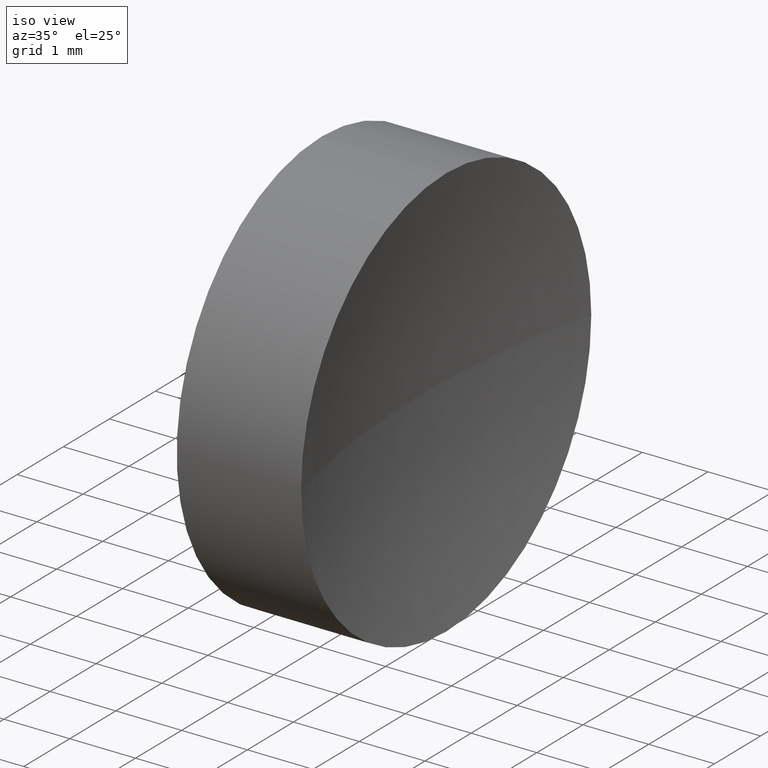
[diagram: clean part render]
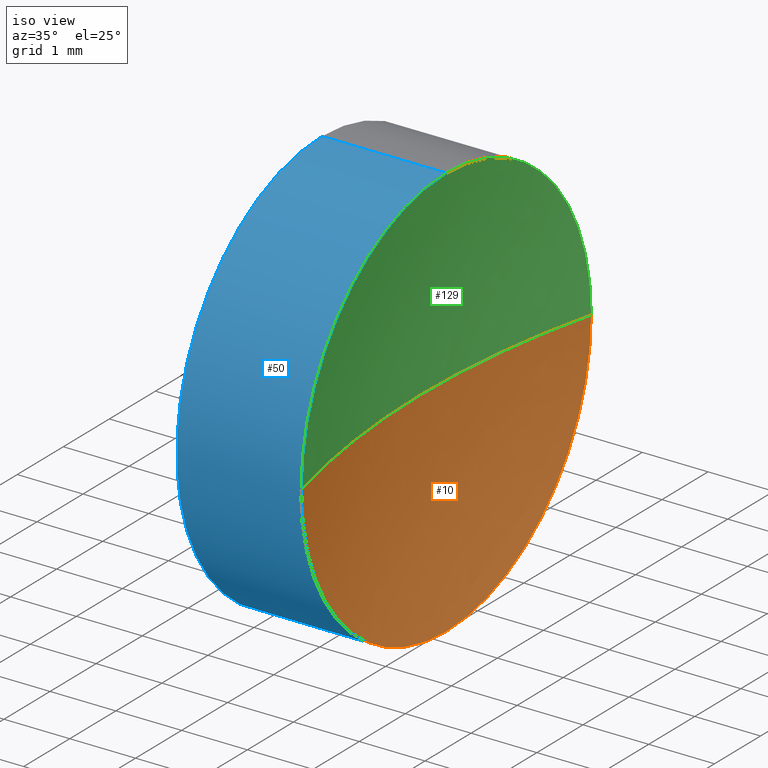
[diagram: same view with three faces highlighted in distinct colors, each labeled with its STEP entity id]
A machine part, iso view with three faces highlighted in distinct colors.
Their STEP definitions:

[orange] entity #10 — the highlighted spherical surface has radius 12.91 mm.
#9 = SPHERICAL_SURFACE ( 'NONE', #43, 12.90999999999999800 ) ;
#10 = ADVANCED_FACE ( 'NONE', ( #91 ), #9, .F. ) ;
#11 = VERTEX_POINT ( 'NONE', #151 ) ;
#16 = DIRECTION ( 'NONE',  ( 0.0000000000000000000, 0.0000000000000000000, 1.000000000000000000 ) ) ;
#17 = CARTESIAN_POINT ( 'NONE',  ( 24.19946052733276100, 16.18112609140304100, 3.857637417314165200E-016 ) ) ;
#25 = EDGE_CURVE ( 'NONE', #62, #32, #172, .T. ) ;
#28 = ORIENTED_EDGE ( 'NONE', *, *, #53, .F. ) ;
#30 = CARTESIAN_POINT ( 'NONE',  ( 23.80926883257449600, 13.03112609140304200, 0.0000000000000000000 ) ) ;
#32 = VERTEX_POINT ( 'NONE', #30 ) ;
#39 = EDGE_CURVE ( 'NONE', #62, #11, #127, .T. ) ;
#43 = AXIS2_PLACEMENT_3D ( 'NONE', #54, #115, #55 ) ;
#45 = ORIENTED_EDGE ( 'NONE', *, *, #39, .F. ) ;
#46 = AXIS2_PLACEMENT_3D ( 'NONE', #134, #107, #16 ) ;
#53 = EDGE_CURVE ( 'NONE', #170, #32, #90, .T. ) ;
#54 = CARTESIAN_POINT ( 'NONE',  ( 36.71926883257449200, 13.03112609140304200, 0.0000000000000000000 ) ) ;
#55 = DIRECTION ( 'NONE',  ( 0.0000000000000000000, -1.000000000000000000, 0.0000000000000000000 ) ) ;
#57 = DIRECTION ( 'NONE',  ( 0.0000000000000000000, 0.0000000000000000000, -1.000000000000000000 ) ) ;
#62 = VERTEX_POINT ( 'NONE', #17 ) ;
#87 = DIRECTION ( 'NONE',  ( 0.0000000000000000000, 0.0000000000000000000, 1.000000000000000000 ) ) ;
#90 = CIRCLE ( 'NONE', #120, 12.90999999999999800 ) ;
#91 = FACE_OUTER_BOUND ( 'NONE', #108, .T. ) ;
#107 = DIRECTION ( 'NONE',  ( -1.000000000000000000, -0.0000000000000000000, -0.0000000000000000000 ) ) ;
#108 = EDGE_LOOP ( 'NONE', ( #45, #149, #28, #144 ) ) ;
#113 = CIRCLE ( 'NONE', #146, 3.150000000000001700 ) ;
#115 = DIRECTION ( 'NONE',  ( 0.0000000000000000000, 0.0000000000000000000, 1.000000000000000000 ) ) ;
#117 = DIRECTION ( 'NONE',  ( -1.000000000000000000, 0.0000000000000000000, 0.0000000000000000000 ) ) ;
#119 = DIRECTION ( 'NONE',  ( -1.000000000000000000, -0.0000000000000000000, -0.0000000000000000000 ) ) ;
#120 = AXIS2_PLACEMENT_3D ( 'NONE', #139, #57, #117 ) ;
#126 = EDGE_CURVE ( 'NONE', #11, #170, #113, .T. ) ;
#127 = CIRCLE ( 'NONE', #46, 3.150000000000001700 ) ;
#133 = CARTESIAN_POINT ( 'NONE',  ( 36.71926883257449200, 13.03112609140304200, 0.0000000000000000000 ) ) ;
#134 = CARTESIAN_POINT ( 'NONE',  ( 24.19946052733276100, 13.03112609140304000, 0.0000000000000000000 ) ) ;
#135 = DIRECTION ( 'NONE',  ( 0.0000000000000000000, -1.000000000000000000, -1.224646799147353200E-016 ) ) ;
#137 = CARTESIAN_POINT ( 'NONE',  ( 24.19946052733276100, 13.03112609140304000, 0.0000000000000000000 ) ) ;
#139 = CARTESIAN_POINT ( 'NONE',  ( 36.71926883257449200, 13.03112609140304200, 0.0000000000000000000 ) ) ;
#144 = ORIENTED_EDGE ( 'NONE', *, *, #126, .F. ) ;
#146 = AXIS2_PLACEMENT_3D ( 'NONE', #137, #119, #87 ) ;
#149 = ORIENTED_EDGE ( 'NONE', *, *, #25, .T. ) ;
#151 = CARTESIAN_POINT ( 'NONE',  ( 24.19946052733276100, 13.03112609140304000, -3.150000000000001200 ) ) ;
#154 = DIRECTION ( 'NONE',  ( 0.0000000000000000000, -1.224646799147353200E-016, 1.000000000000000000 ) ) ;
#165 = AXIS2_PLACEMENT_3D ( 'NONE', #133, #154, #135 ) ;
#170 = VERTEX_POINT ( 'NONE', #174 ) ;
#172 = CIRCLE ( 'NONE', #165, 12.90999999999999800 ) ;
#174 = CARTESIAN_POINT ( 'NONE',  ( 24.19946052733276100, 9.881126091403038100, 0.0000000000000000000 ) ) ;

[blue] entity #50 — the highlighted cylindrical surface (partial cylindrical patch) has radius 3.15 mm, axis along (-1, -0, -0).
#3 = VERTEX_POINT ( 'NONE', #86 ) ;
#11 = VERTEX_POINT ( 'NONE', #151 ) ;
#20 = DIRECTION ( 'NONE',  ( 0.0000000000000000000, 0.0000000000000000000, 1.000000000000000000 ) ) ;
#23 = VERTEX_POINT ( 'NONE', #84 ) ;
#29 = EDGE_CURVE ( 'NONE', #170, #69, #140, .T. ) ;
#33 = DIRECTION ( 'NONE',  ( -1.000000000000000000, -0.0000000000000000000, -0.0000000000000000000 ) ) ;
#42 = CARTESIAN_POINT ( 'NONE',  ( 20.68403063513288800, 13.03112609140304000, 0.0000000000000000000 ) ) ;
#44 = DIRECTION ( 'NONE',  ( -1.000000000000000000, -0.0000000000000000000, -0.0000000000000000000 ) ) ;
#48 = DIRECTION ( 'NONE',  ( -1.000000000000000000, -0.0000000000000000000, -0.0000000000000000000 ) ) ;
#50 = ADVANCED_FACE ( 'NONE', ( #92 ), #83, .T. ) ;
#58 = DIRECTION ( 'NONE',  ( -1.000000000000000000, -0.0000000000000000000, -0.0000000000000000000 ) ) ;
#65 = ORIENTED_EDGE ( 'NONE', *, *, #126, .T. ) ;
#66 = AXIS2_PLACEMENT_3D ( 'NONE', #42, #44, #95 ) ;
#68 = CIRCLE ( 'NONE', #142, 3.149999999999998100 ) ;
#69 = VERTEX_POINT ( 'NONE', #98 ) ;
#70 = CARTESIAN_POINT ( 'NONE',  ( 24.19946052733276100, 13.03112609140304000, 0.0000000000000000000 ) ) ;
#75 = LINE ( 'NONE', #155, #182 ) ;
#83 = CYLINDRICAL_SURFACE ( 'NONE', #66, 3.149999999999999900 ) ;
#84 = CARTESIAN_POINT ( 'NONE',  ( 22.30926883257449200, 13.03112609140304000, -3.149999999999998100 ) ) ;
#86 = CARTESIAN_POINT ( 'NONE',  ( 22.30926883257449200, 13.03112609140304000, 3.149999999999998100 ) ) ;
#87 = DIRECTION ( 'NONE',  ( 0.0000000000000000000, 0.0000000000000000000, 1.000000000000000000 ) ) ;
#88 = VECTOR ( 'NONE', #48, 1000.000000000000000 ) ;
#92 = FACE_OUTER_BOUND ( 'NONE', #161, .T. ) ;
#94 = EDGE_CURVE ( 'NONE', #23, #3, #68, .T. ) ;
#95 = DIRECTION ( 'NONE',  ( 0.0000000000000000000, 0.0000000000000000000, 1.000000000000000000 ) ) ;
#96 = DIRECTION ( 'NONE',  ( 0.0000000000000000000, 0.0000000000000000000, 1.000000000000000000 ) ) ;
#98 = CARTESIAN_POINT ( 'NONE',  ( 24.19946052733276100, 13.03112609140304000, 3.150000000000001200 ) ) ;
#104 = ORIENTED_EDGE ( 'NONE', *, *, #123, .F. ) ;
#113 = CIRCLE ( 'NONE', #146, 3.150000000000001700 ) ;
#114 = LINE ( 'NONE', #160, #88 ) ;
#116 = DIRECTION ( 'NONE',  ( -1.000000000000000000, -0.0000000000000000000, -0.0000000000000000000 ) ) ;
#119 = DIRECTION ( 'NONE',  ( -1.000000000000000000, -0.0000000000000000000, -0.0000000000000000000 ) ) ;
#123 = EDGE_CURVE ( 'NONE', #11, #23, #75, .T. ) ;
#126 = EDGE_CURVE ( 'NONE', #11, #170, #113, .T. ) ;
#130 = ORIENTED_EDGE ( 'NONE', *, *, #94, .F. ) ;
#137 = CARTESIAN_POINT ( 'NONE',  ( 24.19946052733276100, 13.03112609140304000, 0.0000000000000000000 ) ) ;
#140 = CIRCLE ( 'NONE', #173, 3.150000000000001700 ) ;
#142 = AXIS2_PLACEMENT_3D ( 'NONE', #157, #33, #20 ) ;
#146 = AXIS2_PLACEMENT_3D ( 'NONE', #137, #119, #87 ) ;
#147 = ORIENTED_EDGE ( 'NONE', *, *, #29, .T. ) ;
#151 = CARTESIAN_POINT ( 'NONE',  ( 24.19946052733276100, 13.03112609140304000, -3.150000000000001200 ) ) ;
#155 = CARTESIAN_POINT ( 'NONE',  ( 20.68403063513288800, 13.03112609140304000, -3.149999999999999900 ) ) ;
#157 = CARTESIAN_POINT ( 'NONE',  ( 22.30926883257449200, 13.03112609140304000, 0.0000000000000000000 ) ) ;
#160 = CARTESIAN_POINT ( 'NONE',  ( 20.68403063513288800, 13.03112609140304000, 3.149999999999999900 ) ) ;
#161 = EDGE_LOOP ( 'NONE', ( #104, #65, #147, #185, #130 ) ) ;
#170 = VERTEX_POINT ( 'NONE', #174 ) ;
#173 = AXIS2_PLACEMENT_3D ( 'NONE', #70, #116, #96 ) ;
#174 = CARTESIAN_POINT ( 'NONE',  ( 24.19946052733276100, 9.881126091403038100, 0.0000000000000000000 ) ) ;
#182 = VECTOR ( 'NONE', #58, 1000.000000000000000 ) ;
#183 = EDGE_CURVE ( 'NONE', #69, #3, #114, .T. ) ;
#185 = ORIENTED_EDGE ( 'NONE', *, *, #183, .T. ) ;

[green] entity #129 — the highlighted spherical surface has radius 12.91 mm.
#4 = CARTESIAN_POINT ( 'NONE',  ( 36.71926883257449200, 13.03112609140304200, 0.0000000000000000000 ) ) ;
#17 = CARTESIAN_POINT ( 'NONE',  ( 24.19946052733276100, 16.18112609140304100, 3.857637417314165200E-016 ) ) ;
#25 = EDGE_CURVE ( 'NONE', #62, #32, #172, .T. ) ;
#29 = EDGE_CURVE ( 'NONE', #170, #69, #140, .T. ) ;
#30 = CARTESIAN_POINT ( 'NONE',  ( 23.80926883257449600, 13.03112609140304200, 0.0000000000000000000 ) ) ;
#32 = VERTEX_POINT ( 'NONE', #30 ) ;
#38 = ORIENTED_EDGE ( 'NONE', *, *, #136, .F. ) ;
#40 = ORIENTED_EDGE ( 'NONE', *, *, #53, .T. ) ;
#53 = EDGE_CURVE ( 'NONE', #170, #32, #90, .T. ) ;
#56 = FACE_OUTER_BOUND ( 'NONE', #102, .T. ) ;
#57 = DIRECTION ( 'NONE',  ( 0.0000000000000000000, 0.0000000000000000000, -1.000000000000000000 ) ) ;
#60 = DIRECTION ( 'NONE',  ( 0.0000000000000000000, 0.0000000000000000000, 1.000000000000000000 ) ) ;
#61 = DIRECTION ( 'NONE',  ( 0.0000000000000000000, 0.0000000000000000000, 1.000000000000000000 ) ) ;
#62 = VERTEX_POINT ( 'NONE', #17 ) ;
#69 = VERTEX_POINT ( 'NONE', #98 ) ;
#70 = CARTESIAN_POINT ( 'NONE',  ( 24.19946052733276100, 13.03112609140304000, 0.0000000000000000000 ) ) ;
#73 = DIRECTION ( 'NONE',  ( 0.0000000000000000000, -1.000000000000000000, 0.0000000000000000000 ) ) ;
#85 = SPHERICAL_SURFACE ( 'NONE', #148, 12.90999999999999800 ) ;
#89 = DIRECTION ( 'NONE',  ( -1.000000000000000000, -0.0000000000000000000, -0.0000000000000000000 ) ) ;
#90 = CIRCLE ( 'NONE', #120, 12.90999999999999800 ) ;
#96 = DIRECTION ( 'NONE',  ( 0.0000000000000000000, 0.0000000000000000000, 1.000000000000000000 ) ) ;
#98 = CARTESIAN_POINT ( 'NONE',  ( 24.19946052733276100, 13.03112609140304000, 3.150000000000001200 ) ) ;
#102 = EDGE_LOOP ( 'NONE', ( #103, #38, #112, #40 ) ) ;
#103 = ORIENTED_EDGE ( 'NONE', *, *, #25, .F. ) ;
#112 = ORIENTED_EDGE ( 'NONE', *, *, #29, .F. ) ;
#116 = DIRECTION ( 'NONE',  ( -1.000000000000000000, -0.0000000000000000000, -0.0000000000000000000 ) ) ;
#117 = DIRECTION ( 'NONE',  ( -1.000000000000000000, 0.0000000000000000000, 0.0000000000000000000 ) ) ;
#118 = CIRCLE ( 'NONE', #132, 3.150000000000001700 ) ;
#120 = AXIS2_PLACEMENT_3D ( 'NONE', #139, #57, #117 ) ;
#121 = CARTESIAN_POINT ( 'NONE',  ( 24.19946052733276100, 13.03112609140304000, 0.0000000000000000000 ) ) ;
#129 = ADVANCED_FACE ( 'NONE', ( #56 ), #85, .F. ) ;
#132 = AXIS2_PLACEMENT_3D ( 'NONE', #121, #89, #61 ) ;
#133 = CARTESIAN_POINT ( 'NONE',  ( 36.71926883257449200, 13.03112609140304200, 0.0000000000000000000 ) ) ;
#135 = DIRECTION ( 'NONE',  ( 0.0000000000000000000, -1.000000000000000000, -1.224646799147353200E-016 ) ) ;
#136 = EDGE_CURVE ( 'NONE', #69, #62, #118, .T. ) ;
#139 = CARTESIAN_POINT ( 'NONE',  ( 36.71926883257449200, 13.03112609140304200, 0.0000000000000000000 ) ) ;
#140 = CIRCLE ( 'NONE', #173, 3.150000000000001700 ) ;
#148 = AXIS2_PLACEMENT_3D ( 'NONE', #4, #60, #73 ) ;
#154 = DIRECTION ( 'NONE',  ( 0.0000000000000000000, -1.224646799147353200E-016, 1.000000000000000000 ) ) ;
#165 = AXIS2_PLACEMENT_3D ( 'NONE', #133, #154, #135 ) ;
#170 = VERTEX_POINT ( 'NONE', #174 ) ;
#172 = CIRCLE ( 'NONE', #165, 12.90999999999999800 ) ;
#173 = AXIS2_PLACEMENT_3D ( 'NONE', #70, #116, #96 ) ;
#174 = CARTESIAN_POINT ( 'NONE',  ( 24.19946052733276100, 9.881126091403038100, 0.0000000000000000000 ) ) ;